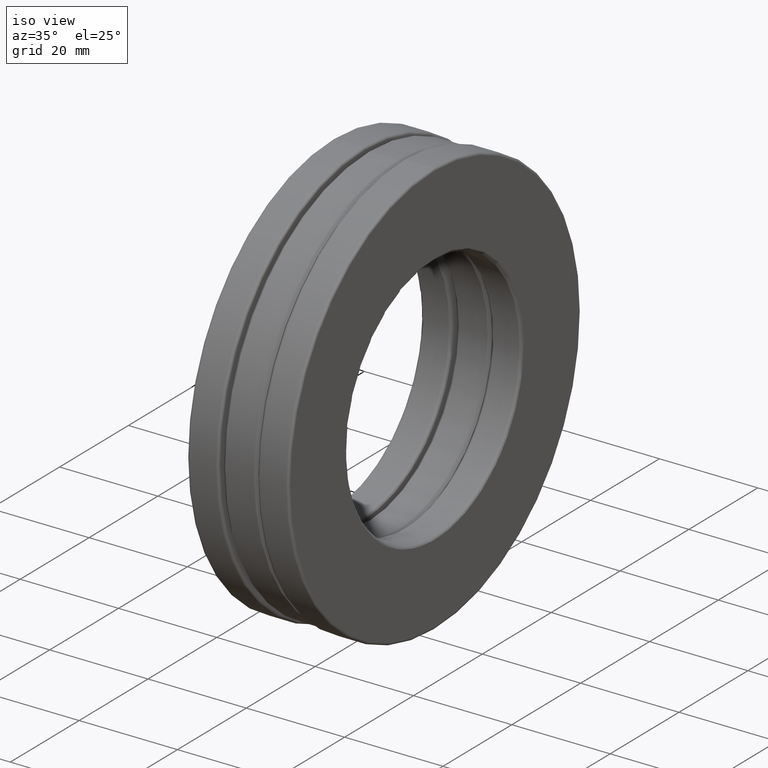
[diagram: clean part render]
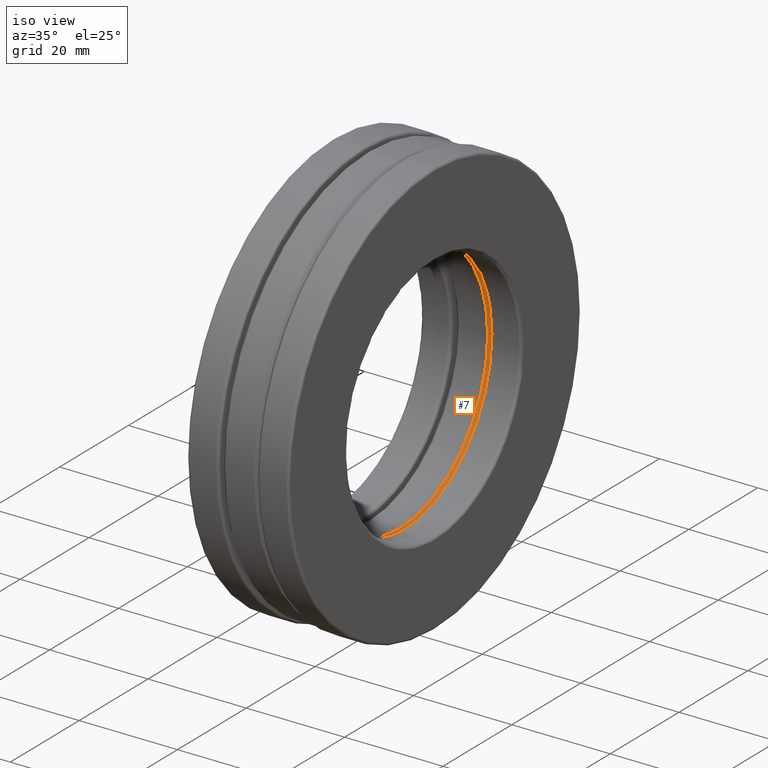
[diagram: same view with one face highlighted and labeled with its STEP entity id]
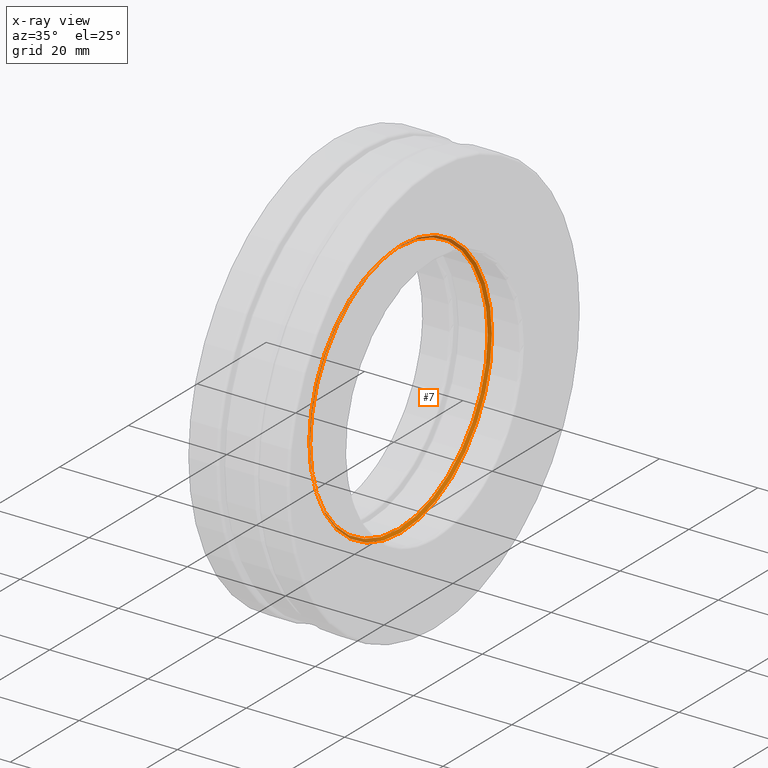
[diagram: x-ray of the same camera — body ghosted, the highlighted face saturated]
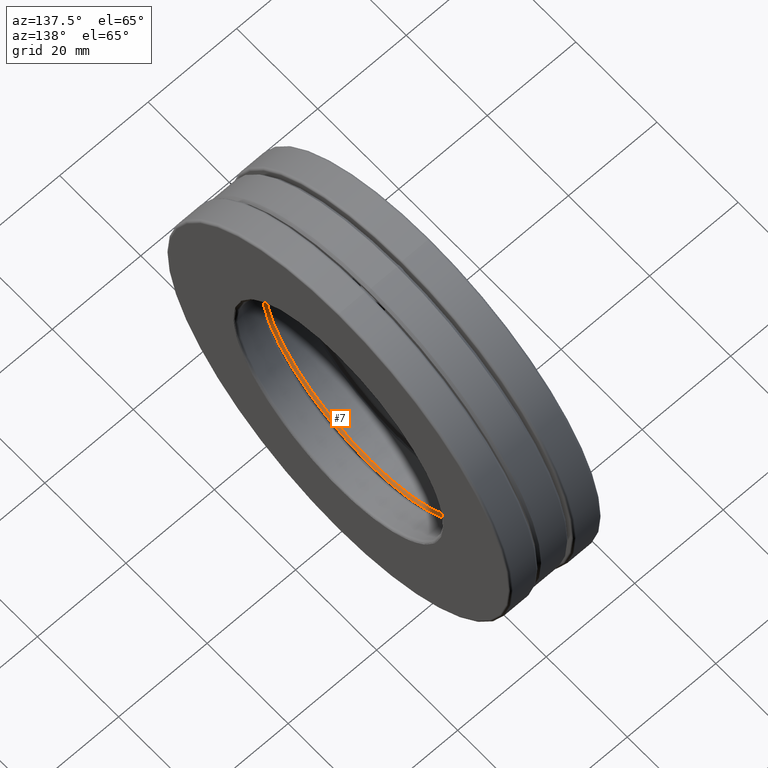
[diagram: same view with one face highlighted and labeled with its STEP entity id]
A machine part, iso view. The second image highlights one B-rep face of the part: STEP entity #7.
The next image is the same camera in x-ray: the body ghosted, the highlighted face saturated — about 16% of this face is hidden behind the body in this view.
A second angle (auxiliary view) of the same face is appended — the face is thin or edge-on in the first view.
In plain terms, the highlighted conical surface has half-angle 45 deg.
Its self-contained STEP definition (entity closure, byte-faithful):
#7 = ADVANCED_FACE ( 'NONE', ( #691, #90 ), #302, .F. ) ;
#14 = EDGE_CURVE ( 'NONE', #700, #700, #1088, .T. ) ;
#90 = FACE_OUTER_BOUND ( 'NONE', #442, .T. ) ;
#147 = AXIS2_PLACEMENT_3D ( 'NONE', #1150, #1276, #591 ) ;
#161 = CARTESIAN_POINT ( 'NONE',  ( 0.1360000000000000700, 0.0000000000000000000, 0.0000000000000000000 ) ) ;
#292 = DIRECTION ( 'NONE',  ( 0.0000000000000000000, 0.0000000000000000000, 1.000000000000000000 ) ) ;
#302 = CONICAL_SURFACE ( 'NONE', #147, 1.040000000000000000, 0.7853981633974500600 ) ;
#342 = EDGE_CURVE ( 'NONE', #1353, #1353, #912, .T. ) ;
#442 = EDGE_LOOP ( 'NONE', ( #1079 ) ) ;
#465 = EDGE_LOOP ( 'NONE', ( #1018 ) ) ;
#591 = DIRECTION ( 'NONE',  ( 0.0000000000000000000, 0.0000000000000000000, -1.000000000000000000 ) ) ;
#691 = FACE_BOUND ( 'NONE', #465, .T. ) ;
#700 = VERTEX_POINT ( 'NONE', #761 ) ;
#761 = CARTESIAN_POINT ( 'NONE',  ( 0.1360000000000000700, 0.0000000000000000000, 1.040000000000000000 ) ) ;
#912 = CIRCLE ( 'NONE', #1156, 1.020000000000000000 ) ;
#951 = DIRECTION ( 'NONE',  ( 0.0000000000000000000, 0.0000000000000000000, 1.000000000000000000 ) ) ;
#1018 = ORIENTED_EDGE ( 'NONE', *, *, #342, .T. ) ;
#1074 = AXIS2_PLACEMENT_3D ( 'NONE', #161, #1423, #292 ) ;
#1079 = ORIENTED_EDGE ( 'NONE', *, *, #14, .F. ) ;
#1088 = CIRCLE ( 'NONE', #1074, 1.040000000000000000 ) ;
#1150 = CARTESIAN_POINT ( 'NONE',  ( 0.1360000000000000700, 0.0000000000000000000, 0.0000000000000000000 ) ) ;
#1156 = AXIS2_PLACEMENT_3D ( 'NONE', #1311, #1401, #951 ) ;
#1205 = CARTESIAN_POINT ( 'NONE',  ( 0.1160000000000000800, 0.0000000000000000000, 1.020000000000000000 ) ) ;
#1276 = DIRECTION ( 'NONE',  ( 1.000000000000000000, 0.0000000000000000000, 0.0000000000000000000 ) ) ;
#1311 = CARTESIAN_POINT ( 'NONE',  ( 0.1160000000000000800, 0.0000000000000000000, 0.0000000000000000000 ) ) ;
#1353 = VERTEX_POINT ( 'NONE', #1205 ) ;
#1401 = DIRECTION ( 'NONE',  ( -1.000000000000000000, -0.0000000000000000000, -0.0000000000000000000 ) ) ;
#1423 = DIRECTION ( 'NONE',  ( -1.000000000000000000, -0.0000000000000000000, -0.0000000000000000000 ) ) ;